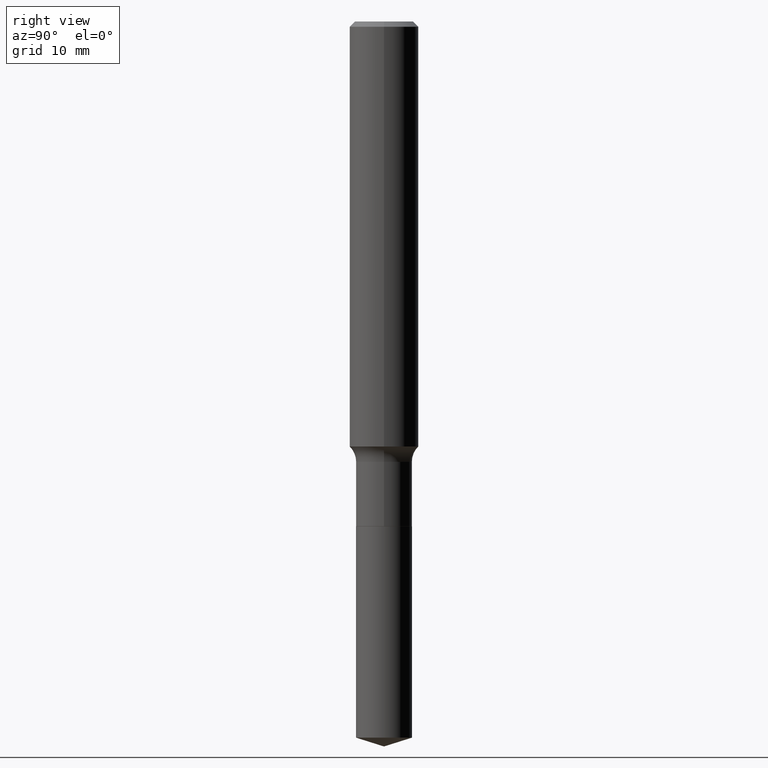
[diagram: clean part render]
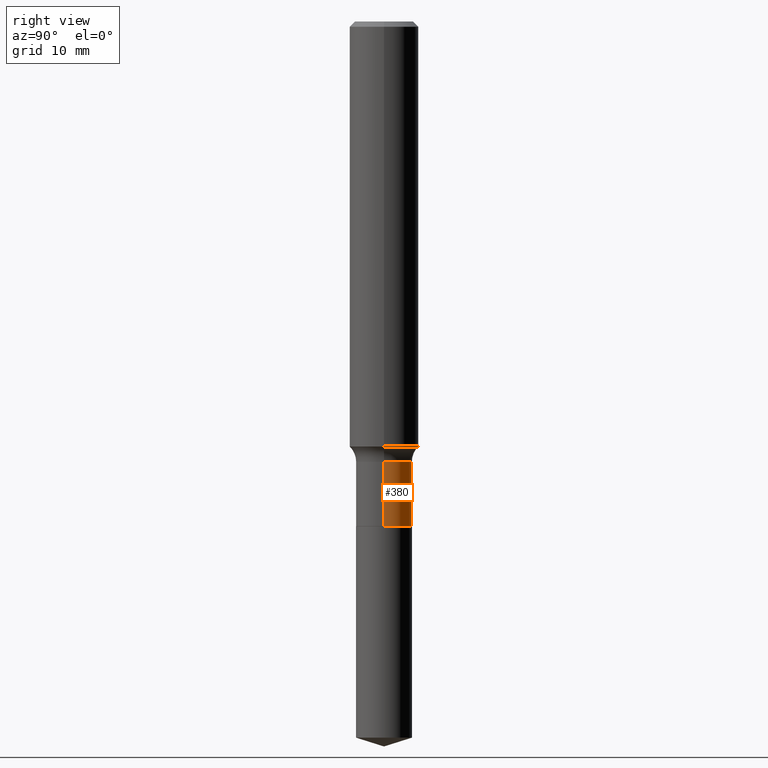
[diagram: same view with one face highlighted and labeled with its STEP entity id]
A machine part, right view. The second image highlights one B-rep face of the part: STEP entity #380.
In plain terms, the highlighted cylindrical surface (edge-blend (fillet) strip) has radius 2.5794 mm, axis along (-0, 0, 1).
Its self-contained STEP definition (entity closure, byte-faithful):
#24 = CARTESIAN_POINT ( 'NONE',  ( -0.1015500000000000014, -5.252542996663183258E-15, -1.827600000000000113 ) ) ;
#46 = EDGE_LOOP ( 'NONE', ( #123, #344, #52, #192 ) ) ;
#50 = VERTEX_POINT ( 'NONE', #207 ) ;
#52 = ORIENTED_EDGE ( 'NONE', *, *, #360, .F. ) ;
#54 = EDGE_CURVE ( 'NONE', #50, #472, #190, .T. ) ;
#55 = DIRECTION ( 'NONE',  ( 1.000000000000000000, -6.982962677686264344E-15, 0.000000000000000000 ) ) ;
#87 = CARTESIAN_POINT ( 'NONE',  ( 0.1015499999999999736, -6.276286854704436544E-15, -1.594500000000000250 ) ) ;
#101 = CARTESIAN_POINT ( 'NONE',  ( 0.000000000000000000, 0.000000000000000000, 0.000000000000000000 ) ) ;
#103 = DIRECTION ( 'NONE',  ( 1.000000000000000000, -6.982962677686266711E-15, 0.000000000000000000 ) ) ;
#107 = AXIS2_PLACEMENT_3D ( 'NONE', #101, #399, #482 ) ;
#118 = VERTEX_POINT ( 'NONE', #87 ) ;
#123 = ORIENTED_EDGE ( 'NONE', *, *, #54, .T. ) ;
#139 = CARTESIAN_POINT ( 'NONE',  ( 0.1015499999999999875, -7.091198599190402890E-16, 4.951757515820772372E-30 ) ) ;
#140 = CIRCLE ( 'NONE', #306, 0.1015499999999999736 ) ;
#169 = DIRECTION ( 'NONE',  ( -2.445468806185136877E-29, 3.491481338843145188E-15, 1.000000000000000000 ) ) ;
#190 = CIRCLE ( 'NONE', #476, 0.1015500000000000014 ) ;
#192 = ORIENTED_EDGE ( 'NONE', *, *, #402, .F. ) ;
#206 = VECTOR ( 'NONE', #169, 39.37007874015748143 ) ;
#207 = CARTESIAN_POINT ( 'NONE',  ( 0.1015500000000000014, -7.090151154788773851E-15, -1.827600000000000113 ) ) ;
#221 = CARTESIAN_POINT ( 'NONE',  ( -0.1015499999999999875, 7.215561481643816499E-16, -4.995178584153856401E-30 ) ) ;
#224 = LINE ( 'NONE', #221, #333 ) ;
#243 = VERTEX_POINT ( 'NONE', #285 ) ;
#285 = CARTESIAN_POINT ( 'NONE',  ( -0.1015499999999999736, -5.252542996663183258E-15, -1.594500000000000250 ) ) ;
#288 = LINE ( 'NONE', #139, #206 ) ;
#306 = AXIS2_PLACEMENT_3D ( 'NONE', #401, #478, #103 ) ;
#333 = VECTOR ( 'NONE', #408, 39.37007874015748143 ) ;
#344 = ORIENTED_EDGE ( 'NONE', *, *, #479, .T. ) ;
#360 = EDGE_CURVE ( 'NONE', #118, #243, #140, .T. ) ;
#369 = CYLINDRICAL_SURFACE ( 'NONE', #107, 0.1015499999999999875 ) ;
#380 = ADVANCED_FACE ( 'NONE', ( #438 ), #369, .T. ) ;
#393 = DIRECTION ( 'NONE',  ( -2.445468806185136597E-29, 3.491481338843145583E-15, 1.000000000000000000 ) ) ;
#399 = DIRECTION ( 'NONE',  ( -2.445468806185136597E-29, 3.491481338843145583E-15, 1.000000000000000000 ) ) ;
#401 = CARTESIAN_POINT ( 'NONE',  ( 3.899300011462200653E-29, -5.567166994785396551E-15, -1.594500000000000250 ) ) ;
#402 = EDGE_CURVE ( 'NONE', #50, #118, #288, .T. ) ;
#408 = DIRECTION ( 'NONE',  ( -2.445468806185136877E-29, 3.491481338843145188E-15, 1.000000000000000000 ) ) ;
#438 = FACE_OUTER_BOUND ( 'NONE', #46, .T. ) ;
#470 = CARTESIAN_POINT ( 'NONE',  ( 4.469338790183956184E-29, -6.381031294869733858E-15, -1.827600000000000113 ) ) ;
#472 = VERTEX_POINT ( 'NONE', #24 ) ;
#476 = AXIS2_PLACEMENT_3D ( 'NONE', #470, #393, #55 ) ;
#478 = DIRECTION ( 'NONE',  ( -2.445468806185136597E-29, 3.491481338843145583E-15, 1.000000000000000000 ) ) ;
#479 = EDGE_CURVE ( 'NONE', #472, #243, #224, .T. ) ;
#482 = DIRECTION ( 'NONE',  ( 1.000000000000000000, -6.982962677686266711E-15, 4.876176775795935793E-29 ) ) ;